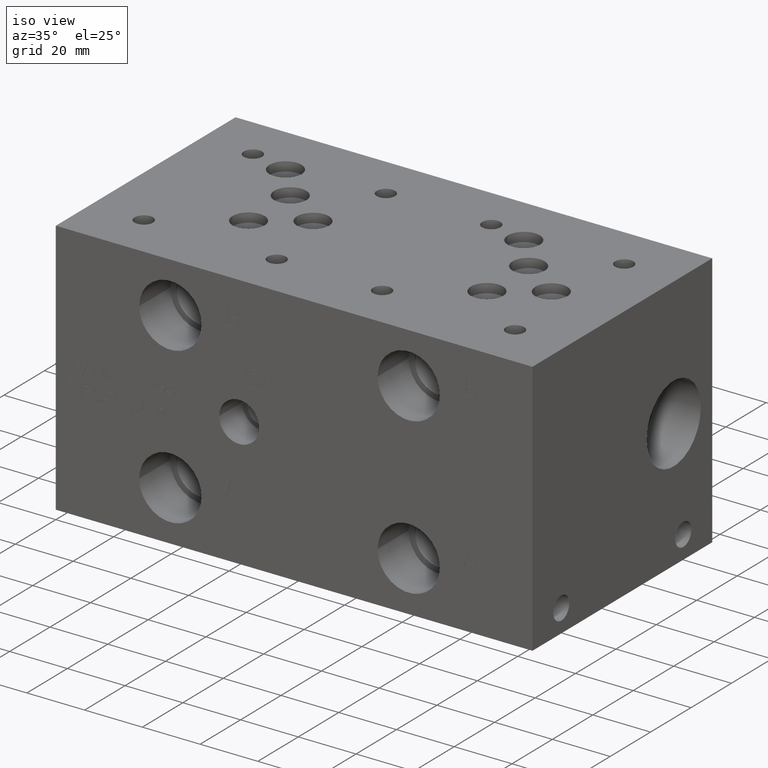
[diagram: clean part render]
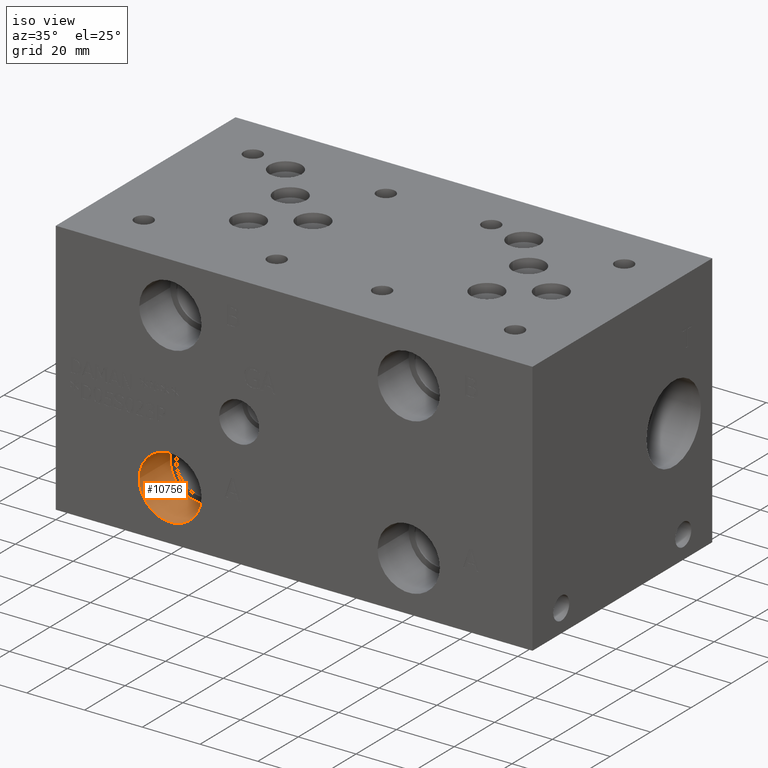
[diagram: same view with one face highlighted and labeled with its STEP entity id]
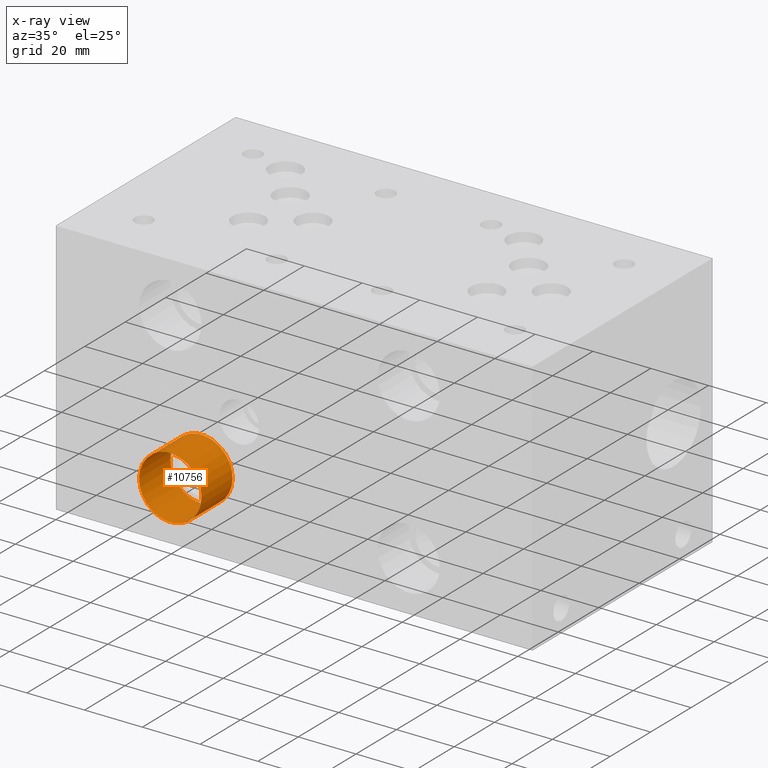
[diagram: x-ray of the same camera — body ghosted, the highlighted face saturated]
A machine part, iso view. The second image highlights one B-rep face of the part: STEP entity #10756.
The next image is the same camera in x-ray: the body ghosted, the highlighted face saturated — about 0% of this face is hidden behind the body in this view.
In plain terms, the highlighted cylindrical surface (bore or boss wall) has radius 10.795 mm, axis along (0, -1, 0).
Its self-contained STEP definition (entity closure, byte-faithful):
#26=CYLINDRICAL_SURFACE('',#11222,10.795);
#93=CIRCLE('',#10934,10.795);
#94=CIRCLE('',#10935,10.795);
#141=CIRCLE('',#11219,10.795);
#142=CIRCLE('',#11220,10.795);
#1290=FACE_OUTER_BOUND('',#1897,.T.);
#1897=EDGE_LOOP('',(#9135,#9136,#9137,#9138,#9139,#9140));
#2952=LINE('',#18275,#3962);
#3962=VECTOR('',#13117,10.795);
#4430=VERTEX_POINT('',#16160);
#4431=VERTEX_POINT('',#16161);
#4914=VERTEX_POINT('',#18268);
#4915=VERTEX_POINT('',#18269);
#5637=EDGE_CURVE('',#4430,#4431,#93,.T.);
#5638=EDGE_CURVE('',#4431,#4430,#94,.T.);
#6366=EDGE_CURVE('',#4914,#4915,#141,.T.);
#6367=EDGE_CURVE('',#4915,#4914,#142,.T.);
#6369=EDGE_CURVE('',#4431,#4915,#2952,.T.);
#9135=ORIENTED_EDGE('',*,*,#5637,.F.);
#9136=ORIENTED_EDGE('',*,*,#5638,.F.);
#9137=ORIENTED_EDGE('',*,*,#6369,.T.);
#9138=ORIENTED_EDGE('',*,*,#6366,.F.);
#9139=ORIENTED_EDGE('',*,*,#6367,.F.);
#9140=ORIENTED_EDGE('',*,*,#6369,.F.);
#10756=ADVANCED_FACE('',(#1290),#26,.F.);
#10934=AXIS2_PLACEMENT_3D('',#16162,#11944,#11945);
#10935=AXIS2_PLACEMENT_3D('',#16163,#11946,#11947);
#11219=AXIS2_PLACEMENT_3D('',#18270,#13109,#13110);
#11220=AXIS2_PLACEMENT_3D('',#18271,#13111,#13112);
#11222=AXIS2_PLACEMENT_3D('',#18274,#13115,#13116);
#11944=DIRECTION('center_axis',(0.,1.,0.));
#11945=DIRECTION('ref_axis',(1.,0.,0.));
#11946=DIRECTION('center_axis',(0.,1.,0.));
#11947=DIRECTION('ref_axis',(1.,0.,0.));
#13109=DIRECTION('center_axis',(0.,-1.,0.));
#13110=DIRECTION('ref_axis',(1.,0.,0.));
#13111=DIRECTION('center_axis',(0.,-1.,0.));
#13112=DIRECTION('ref_axis',(1.,0.,0.));
#13115=DIRECTION('center_axis',(0.,-1.,0.));
#13116=DIRECTION('ref_axis',(1.,0.,0.));
#13117=DIRECTION('',(0.,1.,0.));
#16160=CARTESIAN_POINT('',(50.4698,0.,17.4752));
#16161=CARTESIAN_POINT('',(28.8798,0.,17.4752));
#16162=CARTESIAN_POINT('Origin',(39.6748,0.,17.4752));
#16163=CARTESIAN_POINT('Origin',(39.6748,0.,17.4752));
#18268=CARTESIAN_POINT('',(50.4698,15.367,17.4752));
#18269=CARTESIAN_POINT('',(28.8798,15.367,17.4752));
#18270=CARTESIAN_POINT('Origin',(39.6748,15.367,17.4752));
#18271=CARTESIAN_POINT('Origin',(39.6748,15.367,17.4752));
#18274=CARTESIAN_POINT('Origin',(39.6748,7.6835,17.4752));
#18275=CARTESIAN_POINT('',(28.8798,7.6835,17.4752));